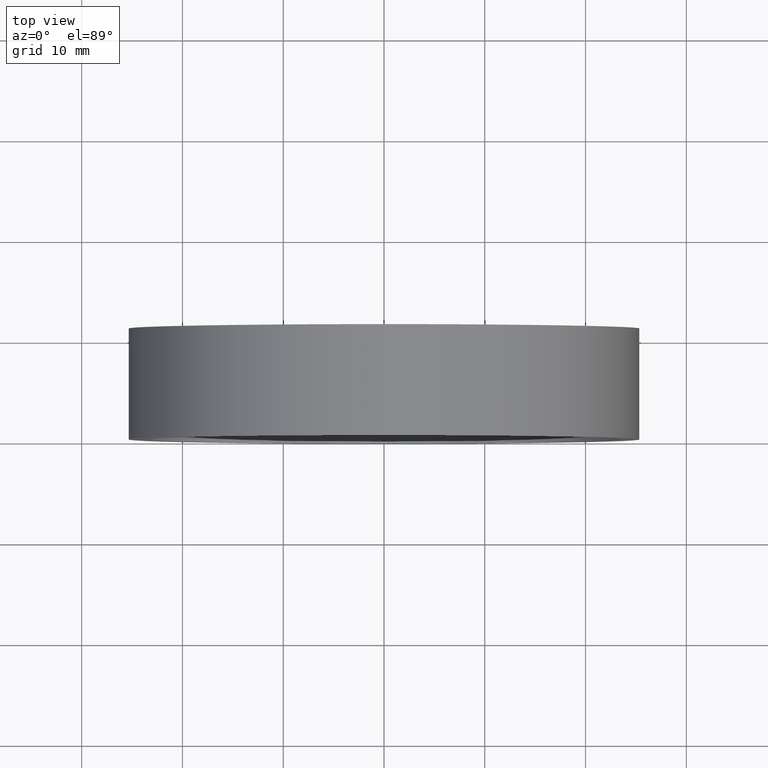
[diagram: clean part render]
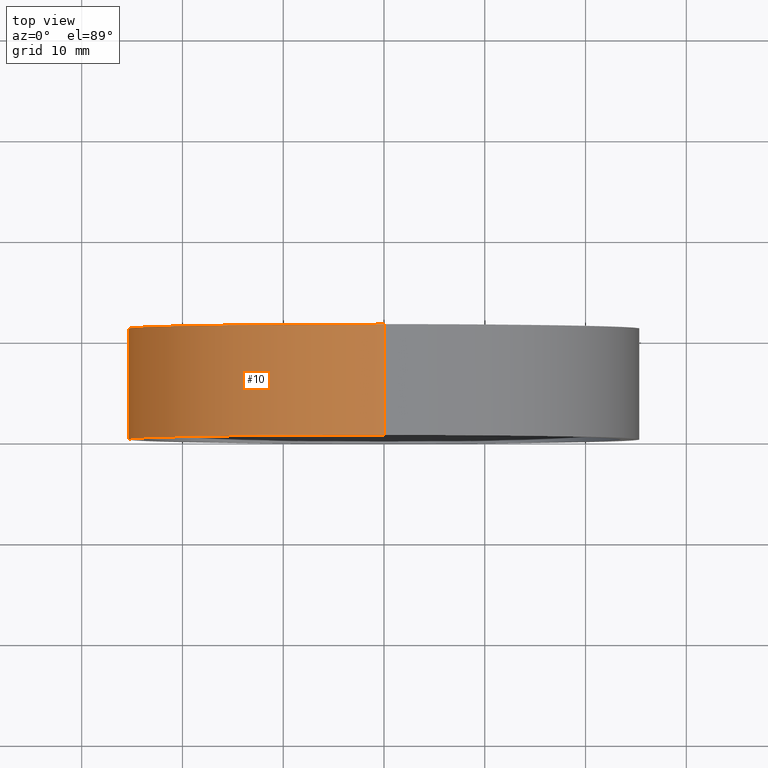
[diagram: same view with one face highlighted and labeled with its STEP entity id]
A machine part, top view. The second image highlights one B-rep face of the part: STEP entity #10.
In plain terms, the highlighted cylindrical surface (partial cylindrical patch) has radius 25.4 mm, axis along (-0, 1, -0).
Its self-contained STEP definition (entity closure, byte-faithful):
#1 = CIRCLE ( 'NONE', #322, 25.40000000000000200 ) ;
#10 = ADVANCED_FACE ( 'NONE', ( #233 ), #75, .T. ) ;
#21 = CARTESIAN_POINT ( 'NONE',  ( 0.0000000000000000000, 0.0000000000000000000, 25.40000000000000200 ) ) ;
#47 = ORIENTED_EDGE ( 'NONE', *, *, #273, .T. ) ;
#50 = VECTOR ( 'NONE', #432, 1000.000000000000000 ) ;
#52 = CARTESIAN_POINT ( 'NONE',  ( 3.110602869834277300E-015, 60.02082041425541100, -25.40000000000000200 ) ) ;
#75 = CYLINDRICAL_SURFACE ( 'NONE', #231, 25.40000000000000200 ) ;
#82 = DIRECTION ( 'NONE',  ( -0.0000000000000000000, 1.000000000000000000, -0.0000000000000000000 ) ) ;
#84 = EDGE_CURVE ( 'NONE', #168, #151, #380, .T. ) ;
#104 = DIRECTION ( 'NONE',  ( -0.0000000000000000000, 1.000000000000000000, -0.0000000000000000000 ) ) ;
#119 = DIRECTION ( 'NONE',  ( 0.0000000000000000000, 0.0000000000000000000, 1.000000000000000000 ) ) ;
#141 = AXIS2_PLACEMENT_3D ( 'NONE', #222, #417, #189 ) ;
#144 = VERTEX_POINT ( 'NONE', #21 ) ;
#151 = VERTEX_POINT ( 'NONE', #363 ) ;
#163 = EDGE_CURVE ( 'NONE', #169, #168, #251, .T. ) ;
#168 = VERTEX_POINT ( 'NONE', #390 ) ;
#169 = VERTEX_POINT ( 'NONE', #366 ) ;
#170 = EDGE_CURVE ( 'NONE', #169, #144, #1, .T. ) ;
#189 = DIRECTION ( 'NONE',  ( 0.0000000000000000000, 0.0000000000000000000, 1.000000000000000000 ) ) ;
#222 = CARTESIAN_POINT ( 'NONE',  ( 0.0000000000000000000, 10.99999999999999600, 0.0000000000000000000 ) ) ;
#225 = CARTESIAN_POINT ( 'NONE',  ( 0.0000000000000000000, 60.02082041425541100, 0.0000000000000000000 ) ) ;
#231 = AXIS2_PLACEMENT_3D ( 'NONE', #225, #104, #433 ) ;
#233 = FACE_OUTER_BOUND ( 'NONE', #379, .T. ) ;
#241 = DIRECTION ( 'NONE',  ( -0.0000000000000000000, 1.000000000000000000, -0.0000000000000000000 ) ) ;
#251 = LINE ( 'NONE', #52, #395 ) ;
#265 = ORIENTED_EDGE ( 'NONE', *, *, #170, .T. ) ;
#273 = EDGE_CURVE ( 'NONE', #144, #151, #281, .T. ) ;
#281 = LINE ( 'NONE', #360, #50 ) ;
#322 = AXIS2_PLACEMENT_3D ( 'NONE', #323, #82, #119 ) ;
#323 = CARTESIAN_POINT ( 'NONE',  ( 0.0000000000000000000, 0.0000000000000000000, 0.0000000000000000000 ) ) ;
#344 = ORIENTED_EDGE ( 'NONE', *, *, #84, .F. ) ;
#360 = CARTESIAN_POINT ( 'NONE',  ( 0.0000000000000000000, 60.02082041425541100, 25.40000000000000200 ) ) ;
#363 = CARTESIAN_POINT ( 'NONE',  ( 0.0000000000000000000, 10.99999999999999600, 25.40000000000000200 ) ) ;
#366 = CARTESIAN_POINT ( 'NONE',  ( 3.110602869834277300E-015, 0.0000000000000000000, -25.40000000000000200 ) ) ;
#379 = EDGE_LOOP ( 'NONE', ( #416, #265, #47, #344 ) ) ;
#380 = CIRCLE ( 'NONE', #141, 25.40000000000000200 ) ;
#390 = CARTESIAN_POINT ( 'NONE',  ( 3.110602869834277300E-015, 10.99999999999999600, -25.40000000000000200 ) ) ;
#395 = VECTOR ( 'NONE', #241, 1000.000000000000000 ) ;
#416 = ORIENTED_EDGE ( 'NONE', *, *, #163, .F. ) ;
#417 = DIRECTION ( 'NONE',  ( -0.0000000000000000000, 1.000000000000000000, -0.0000000000000000000 ) ) ;
#432 = DIRECTION ( 'NONE',  ( -0.0000000000000000000, 1.000000000000000000, -0.0000000000000000000 ) ) ;
#433 = DIRECTION ( 'NONE',  ( 0.0000000000000000000, 0.0000000000000000000, 1.000000000000000000 ) ) ;